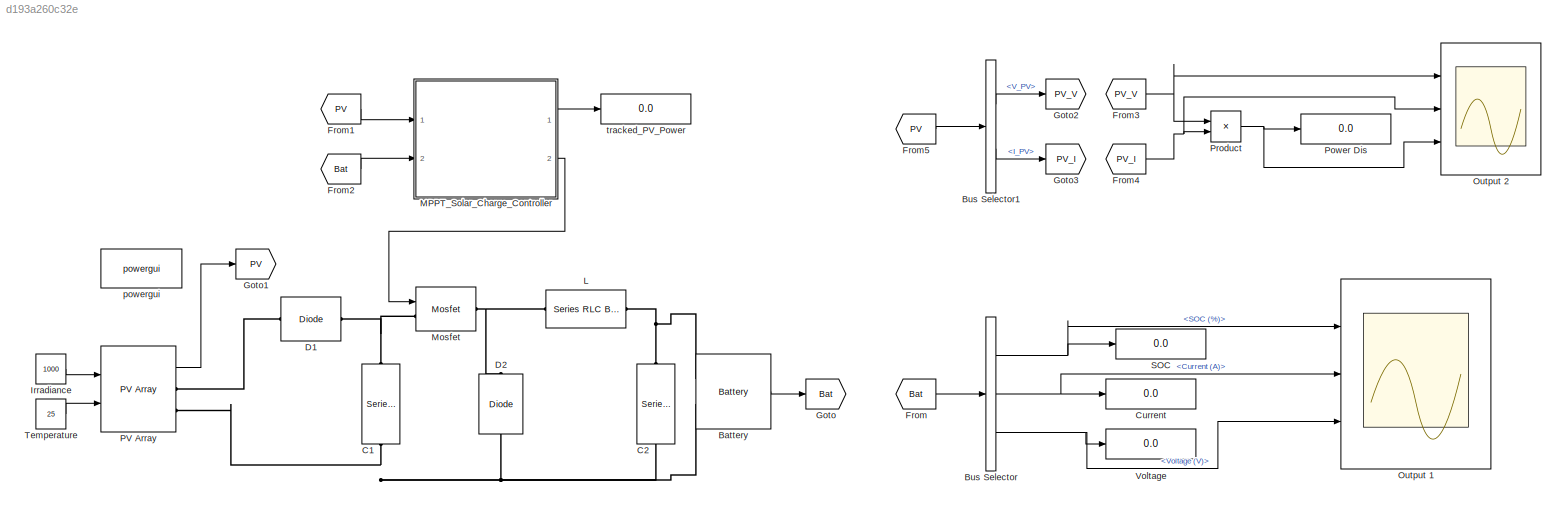
MODEL slx_d193a260c32e
KIND model
CONFIG AbsTol = auto
CONFIG EnableMultiTasking = off
CONFIG FixedStep = auto
CONFIG MaxStep = auto
CONFIG MinStep = auto
CONFIG RelTol = 1e-3
CONFIG SampleTimeConstraint = Unconstrained
CONFIG Solver = ode23t
CONFIG SolverName = ode23t
CONFIG StartTime = 0.0
CONFIG StopTime = 10.0
BLOCK [Reference] Battery  REF=electricdrivelib/Extra Sources/Battery
  Ports = [0, 1, 0, 0, 0, 2]
  SourceBlock = electricdrivelib/Extra Sources/Battery
  SourceProductBaseCode = PS
  SourceProductName = Simscape Power Systems
  SourceType = Battery
BLOCK [BusSelector] Bus Selector
  OutputAsBus = off
  OutputSignals = SOC (%),Current (A),Voltage (V)
  Ports = [1, 3]
BLOCK [BusSelector] Bus Selector1
  OutputAsBus = off
  OutputSignals = V_PV,I_PV
  Ports = [1, 2]
BLOCK [Reference] C1  REF=powerlib/Elements/Series RLC Branch
  Ports = [0, 0, 0, 0, 0, 1, 1]
  SourceBlock = powerlib/Elements/Series RLC Branch
  SourceProductBaseCode = PS
  SourceProductName = Simscape Power Systems
  SourceType = Series RLC Branch
BLOCK [Reference] C2  REF=powerlib/Elements/Series RLC Branch
  Ports = [0, 0, 0, 0, 0, 1, 1]
  SourceBlock = powerlib/Elements/Series RLC Branch
  SourceProductBaseCode = PS
  SourceProductName = Simscape Power Systems
  SourceType = Series RLC Branch
BLOCK [Display] Current
  Decimation = 1
  Ports = [1]
BLOCK [Reference] D1  REF=powerlib/Power
Electronics/Diode
  Ports = [0, 0, 0, 0, 0, 1, 1]
  SourceBlock = powerlib/Power\nElectronics/Diode
  SourceProductBaseCode = PS
  SourceProductName = Simscape Power Systems
  SourceType = Diode
BLOCK [Reference] D2  REF=powerlib/Power
Electronics/Diode
  Ports = [0, 0, 0, 0, 0, 1, 1]
  SourceBlock = powerlib/Power\nElectronics/Diode
  SourceProductBaseCode = PS
  SourceProductName = Simscape Power Systems
  SourceType = Diode
BLOCK [From] From
  GotoTag = Bat
  TagVisibility = global
BLOCK [From] From1
  GotoTag = PV
  TagVisibility = global
BLOCK [From] From2
  GotoTag = Bat
  TagVisibility = global
BLOCK [From] From3
  GotoTag = PV_V
  TagVisibility = global
BLOCK [From] From4
  GotoTag = PV_I
  TagVisibility = global
BLOCK [From] From5
  GotoTag = PV
  TagVisibility = global
BLOCK [Goto] Goto
  GotoTag = Bat
  TagVisibility = global
BLOCK [Goto] Goto1
  GotoTag = PV
  TagVisibility = global
BLOCK [Goto] Goto2
  GotoTag = PV_V
  TagVisibility = global
BLOCK [Goto] Goto3
  GotoTag = PV_I
  TagVisibility = global
BLOCK [Constant] Irradiance
  Value = 1000
BLOCK [Reference] L  REF=powerlib/Elements/Series RLC Branch
  Ports = [0, 0, 0, 0, 0, 1, 1]
  SourceBlock = powerlib/Elements/Series RLC Branch
  SourceProductBaseCode = PS
  SourceProductName = Simscape Power Systems
  SourceType = Series RLC Branch
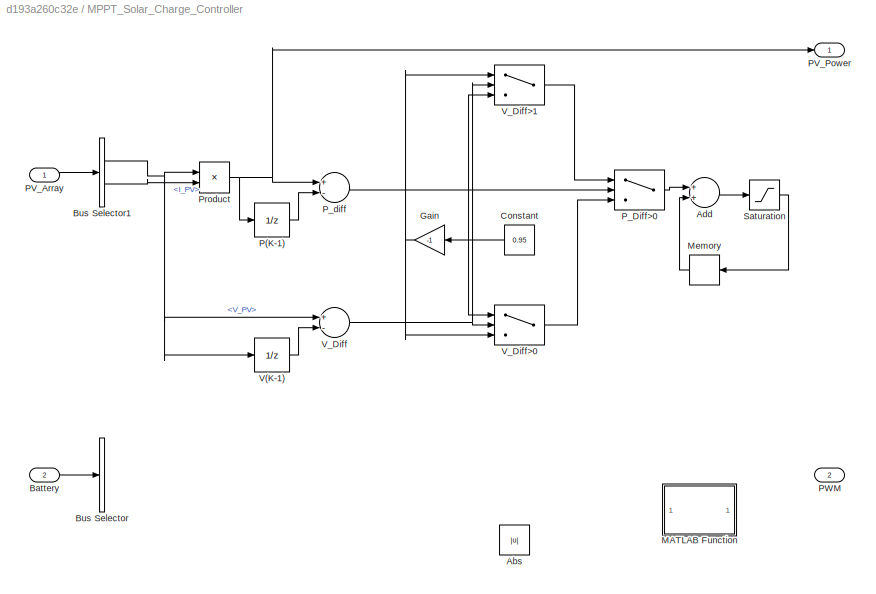
BLOCK [SubSystem] MPPT_Solar_Charge_Controller
  Ports = [2, 2]
  RequestExecContextInheritance = off
BLOCK [Abs] MPPT_Solar_Charge_Controller/Abs
  SaturateOnIntegerOverflow = off
BLOCK [Sum] MPPT_Solar_Charge_Controller/Add
  InputSameDT = off
  OutDataTypeStr = Inherit: Inherit via internal rule
  Ports = [2, 1]
  SaturateOnIntegerOverflow = off
BLOCK [Inport] MPPT_Solar_Charge_Controller/Battery
  IconDisplay = Port number
  Port = 2
BLOCK [BusSelector] MPPT_Solar_Charge_Controller/Bus Selector
  OutputAsBus = off
  OutputSignals = SOC (%),Current (A),Voltage (V)
  Ports = [1, 3]
BLOCK [BusSelector] MPPT_Solar_Charge_Controller/Bus Selector1
  OutputAsBus = off
  OutputSignals = V_PV,I_PV
  Ports = [1, 2]
BLOCK [Constant] MPPT_Solar_Charge_Controller/Constant
  OutMax = [0.95]
  OutMin = [0]
  Value = 0.95
BLOCK [Gain] MPPT_Solar_Charge_Controller/Gain
  Gain = -1
  OutDataTypeStr = Inherit: Inherit via internal rule
  ParamDataTypeStr = Inherit: Inherit via internal rule
  SaturateOnIntegerOverflow = off
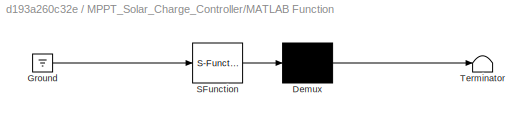
BLOCK [SubSystem] MPPT_Solar_Charge_Controller/MATLAB Function
  ErrorFcn = Stateflow.Translate.translate
  PermitHierarchicalResolution = ExplicitOnly
  Ports = []
  RequestExecContextInheritance = off
  SFBlockType = MATLAB Function
  TreatAsAtomicUnit = on
BLOCK [Demux] MPPT_Solar_Charge_Controller/MATLAB Function/ Demux 
  Outputs = 1
  Ports = [1, 1]
BLOCK [Ground] MPPT_Solar_Charge_Controller/MATLAB Function/ Ground 
BLOCK [S-Function] MPPT_Solar_Charge_Controller/MATLAB Function/ SFunction 
  EnableBusSupport = off
  FunctionName = sf_sfun
  PortCounts = [1 1]
  Ports = [1, 1]
  SFcnIsStateOwnerBlock = off
  SFunctionDeploymentMode = off
  Tag = Stateflow S-Function SCC 2
BLOCK [Terminator] MPPT_Solar_Charge_Controller/MATLAB Function/ Terminator 
BLOCK [Memory] MPPT_Solar_Charge_Controller/Memory
  InheritSampleTime = on
  InitialCondition = 0.5
  LinearizeAsDelay = on
  LinearizeMemory = on
BLOCK [UnitDelay] MPPT_Solar_Charge_Controller/P(K-1)
  InputProcessing = Elements as channels (sample based)
  SampleTime = -1
BLOCK [Inport] MPPT_Solar_Charge_Controller/PV_Array
  IconDisplay = Port number
BLOCK [Outport] MPPT_Solar_Charge_Controller/PV_Power
  IconDisplay = Port number
BLOCK [Outport] MPPT_Solar_Charge_Controller/PWM
  IconDisplay = Port number
  Port = 2
BLOCK [Switch] MPPT_Solar_Charge_Controller/P_Diff>0
  Criteria = u2 > Threshold
  InputSameDT = off
  SaturateOnIntegerOverflow = off
BLOCK [Sum] MPPT_Solar_Charge_Controller/P_diff
  InputSameDT = off
  Inputs = +-
  OutDataTypeStr = Inherit: Inherit via internal rule
  Ports = [2, 1]
  SaturateOnIntegerOverflow = off
BLOCK [Product] MPPT_Solar_Charge_Controller/Product
  InputSameDT = off
  OutDataTypeStr = Inherit: Inherit via internal rule
  Ports = [2, 1]
  RndMeth = Floor
  SaturateOnIntegerOverflow = off
BLOCK [Saturate] MPPT_Solar_Charge_Controller/Saturation
  InputPortMap = u0
  LowerLimit = 0.4
  Ports = [1, 1]
  UpperLimit = 0.6
BLOCK [UnitDelay] MPPT_Solar_Charge_Controller/V(K-1)
  InputProcessing = Elements as channels (sample based)
  SampleTime = -1
BLOCK [Sum] MPPT_Solar_Charge_Controller/V_Diff
  InputSameDT = off
  Inputs = +-
  OutDataTypeStr = Inherit: Inherit via internal rule
  Ports = [2, 1]
  SaturateOnIntegerOverflow = off
BLOCK [Switch] MPPT_Solar_Charge_Controller/V_Diff>0
  Criteria = u2 > Threshold
  InputSameDT = off
  SaturateOnIntegerOverflow = off
BLOCK [Switch] MPPT_Solar_Charge_Controller/V_Diff>1
  Criteria = u2 > Threshold
  InputSameDT = off
  SaturateOnIntegerOverflow = off
BLOCK [Reference] Mosfet  REF=powerlib/Power
Electronics/Mosfet
  Ports = [1, 0, 0, 0, 0, 1, 1]
  SourceBlock = powerlib/Power\nElectronics/Mosfet
  SourceProductBaseCode = PS
  SourceProductName = Simscape Power Systems
  SourceType = Mosfet
BLOCK [Scope] Output 1
  Floating = off
  NumInputPorts = 3
  Ports = [3]
  ScopeSpecificationString = Simulink.scopes.TimeScopeBlockCfg('CurrentConfiguration', extmgr.ConfigurationSet(extmgr.Configuration('Core','General UI',true,'DisplayFullSourceName',true),extmgr.Configuration('Core','Source UI',true),extmgr.Configuration('Sources','WiredSimulink',true),extmgr.Configuration('Visuals','Time Domain',true,'SerializedDisplays',{struct('MinYLimReal','-26.62419','MaxYLimReal','239.6177','YLabelReal',...<+5739ch>
BLOCK [Scope] Output 2
  Floating = off
  NumInputPorts = 3
  Ports = [3]
  ScopeSpecificationString = Simulink.scopes.TimeScopeBlockCfg('CurrentConfiguration', extmgr.ConfigurationSet(extmgr.Configuration('Core','General UI',true,'DisplayFullSourceName',true),extmgr.Configuration('Core','Source UI',true),extmgr.Configuration('Sources','WiredSimulink',true,'DataLoggingVariableName','ScopeData1'),extmgr.Configuration('Visuals','Time Domain',true,'SerializedDisplays',{struct('MinYLimReal','-26.62419'...<+5716ch>
BLOCK [Reference] PV Array  REF=re_lib/Solar/PV Array
  Ports = [2, 1, 0, 0, 0, 0, 2]
  SourceBlock = re_lib/Solar/PV Array
  SourceProductBaseCode = PS
  SourceProductName = Simscape Power Systems
  SourceType = PV array
BLOCK [Display] Power Dis
  Decimation = 1
  Ports = [1]
BLOCK [Product] Product
  InputSameDT = off
  OutDataTypeStr = Inherit: Inherit via internal rule
  Ports = [2, 1]
  RndMeth = Floor
  SaturateOnIntegerOverflow = off
BLOCK [Display] SOC
  Decimation = 1
  Ports = [1]
BLOCK [Constant] Temperature
  Value = 25
BLOCK [Display] Voltage
  Decimation = 1
  Ports = [1]
BLOCK [Reference] powergui  REF=powerlib/powergui
  Ports = []
  Priority = 1
  SourceBlock = powerlib/powergui
  SourceProductBaseCode = PS
  SourceProductName = Simscape Power Systems
  SourceType = PSB option menu block
BLOCK [Display] tracked_PV_Power
  Decimation = 1
  Ports = [1]
LINE Battery:1 -> Goto:1
LINE Bus Selector1:1 -> Goto2:1
LINE Bus Selector1:2 -> Goto3:1
NET Bus Selector:1 -> Output 1:1, SOC:1
NET Bus Selector:2 -> Current:1, Output 1:2
NET Bus Selector:3 -> Output 1:3, Voltage:1
LINE From1:1 -> MPPT_Solar_Charge_Controller:1
LINE From2:1 -> MPPT_Solar_Charge_Controller:2
NET From3:1 -> Output 2:1, Product:1
NET From4:1 -> Output 2:2, Product:2
LINE From5:1 -> Bus Selector1:1
LINE From:1 -> Bus Selector:1
LINE Irradiance:1 -> PV Array:1
LINE MPPT_Solar_Charge_Controller/Add:1 -> MPPT_Solar_Charge_Controller/Saturation:1
LINE MPPT_Solar_Charge_Controller/Battery:1 -> MPPT_Solar_Charge_Controller/Bus Selector:1
NET MPPT_Solar_Charge_Controller/Bus Selector1:1 -> MPPT_Solar_Charge_Controller/Product:1, MPPT_Solar_Charge_Controller/V(K-1):1, MPPT_Solar_Charge_Controller/V_Diff:1
LINE MPPT_Solar_Charge_Controller/Bus Selector1:2 -> MPPT_Solar_Charge_Controller/Product:2
NET MPPT_Solar_Charge_Controller/Constant:1 -> MPPT_Solar_Charge_Controller/Gain:1, MPPT_Solar_Charge_Controller/V_Diff>0:1, MPPT_Solar_Charge_Controller/V_Diff>1:3
NET MPPT_Solar_Charge_Controller/Gain:1 -> MPPT_Solar_Charge_Controller/V_Diff>0:3, MPPT_Solar_Charge_Controller/V_Diff>1:1
LINE MPPT_Solar_Charge_Controller/Memory:1 -> MPPT_Solar_Charge_Controller/Add:2
LINE MPPT_Solar_Charge_Controller/P(K-1):1 -> MPPT_Solar_Charge_Controller/P_diff:2
LINE MPPT_Solar_Charge_Controller/PV_Array:1 -> MPPT_Solar_Charge_Controller/Bus Selector1:1
LINE MPPT_Solar_Charge_Controller/P_Diff>0:1 -> MPPT_Solar_Charge_Controller/Add:1
LINE MPPT_Solar_Charge_Controller/P_diff:1 -> MPPT_Solar_Charge_Controller/P_Diff>0:2
NET MPPT_Solar_Charge_Controller/Product:1 -> MPPT_Solar_Charge_Controller/P(K-1):1, MPPT_Solar_Charge_Controller/PV_Power:1, MPPT_Solar_Charge_Controller/P_diff:1
LINE MPPT_Solar_Charge_Controller/Saturation:1 -> MPPT_Solar_Charge_Controller/Memory:1
LINE MPPT_Solar_Charge_Controller/V(K-1):1 -> MPPT_Solar_Charge_Controller/V_Diff:2
NET MPPT_Solar_Charge_Controller/V_Diff:1 -> MPPT_Solar_Charge_Controller/V_Diff>0:2, MPPT_Solar_Charge_Controller/V_Diff>1:2
LINE MPPT_Solar_Charge_Controller/V_Diff>0:1 -> MPPT_Solar_Charge_Controller/P_Diff>0:3
LINE MPPT_Solar_Charge_Controller/V_Diff>1:1 -> MPPT_Solar_Charge_Controller/P_Diff>0:1
LINE MPPT_Solar_Charge_Controller:1 -> tracked_PV_Power:1
LINE MPPT_Solar_Charge_Controller:2 -> Mosfet:1
LINE PV Array:1 -> Goto1:1
NET Product:1 -> Output 2:3, Power Dis:1
LINE Temperature:1 -> PV Array:2
PNET net1: Battery:LConn1 -- C2:LConn1 -- L:LConn1
PNET net2: Battery:LConn2 -- C1:RConn1 -- C2:RConn1 -- D2:LConn1 -- PV Array:RConn2
PNET net3: C1:LConn1 -- D1:RConn1 -- Mosfet:LConn1
PLINE D1:LConn1 -- PV Array:RConn1
PNET net4: D2:RConn1 -- L:RConn1 -- Mosfet:RConn1
note: NET lines group one-source signal fan-out (src -> all destinations, sorted); 1:1 wires keep LINE; PNET lines group multi-terminal physical nets as a canonical sorted terminal list (undirected conserving connections); 2-terminal nets keep the pairwise PLINE form
CHART MPPT_Solar_Charge_Controller/MATLAB Function states=1 transitions=1
  STATE_LABEL 'eML_blk_kernel()'
  STATE_LABEL 'SCRIPT:\nfunction Duty_Cycle\n\nend'
